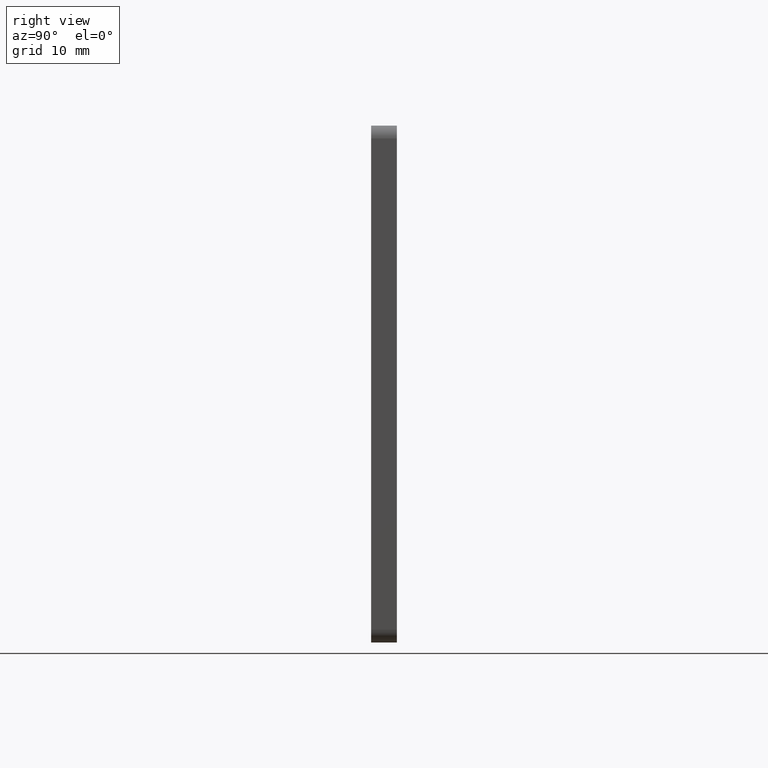
[diagram: clean part render]
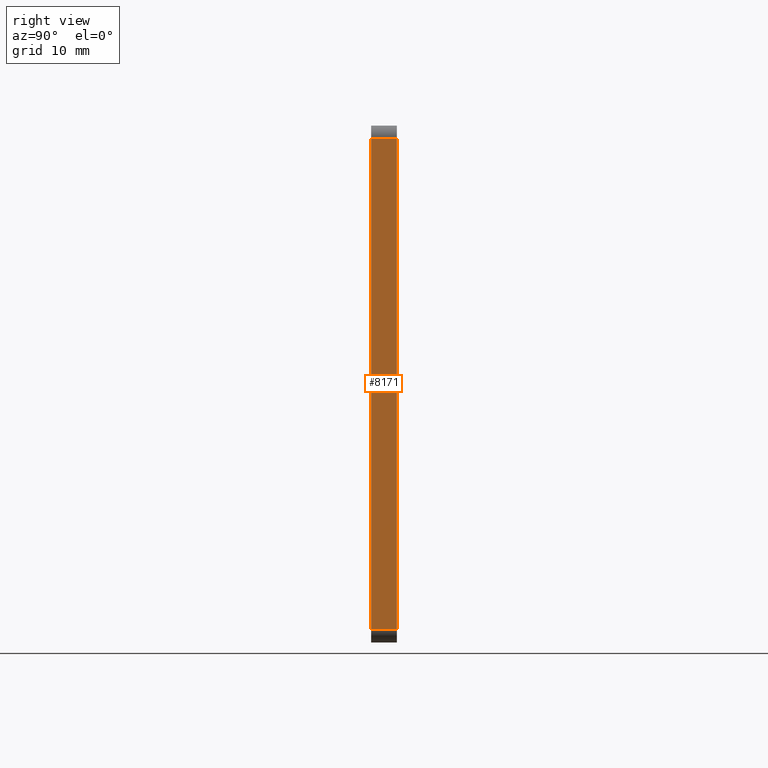
[diagram: same view with one face highlighted and labeled with its STEP entity id]
A machine part, right view. The second image highlights one B-rep face of the part: STEP entity #8171.
In plain terms, the highlighted planar face has unit normal (-1, 0, 0).
Its self-contained STEP definition (entity closure, byte-faithful):
#457 = AXIS2_PLACEMENT_3D ( 'NONE', #4328, #6522, #13346 ) ;
#544 = VERTEX_POINT ( 'NONE', #12971 ) ;
#766 = EDGE_CURVE ( 'NONE', #4066, #544, #12292, .T. ) ;
#1312 = VECTOR ( 'NONE', #3859, 1000.000000000000000 ) ;
#1356 = DIRECTION ( 'NONE',  ( -0.000000000000000000, 1.000000000000000000, -0.000000000000000000 ) ) ;
#1552 = EDGE_CURVE ( 'NONE', #10540, #11333, #3818, .T. ) ;
#2968 = VECTOR ( 'NONE', #9932, 1000.000000000000000 ) ;
#3818 = LINE ( 'NONE', #11770, #5943 ) ;
#3859 = DIRECTION ( 'NONE',  ( 0.000000000000000000, -1.000000000000000000, 0.000000000000000000 ) ) ;
#4066 = VERTEX_POINT ( 'NONE', #14499 ) ;
#4259 = EDGE_CURVE ( 'NONE', #4066, #10540, #13115, .T. ) ;
#4328 = CARTESIAN_POINT ( 'NONE',  ( 40.00000000000001421, 4.000000000000000000, -39.99999999999999289 ) ) ;
#4940 = VECTOR ( 'NONE', #1356, 1000.000000000000000 ) ;
#5346 = ORIENTED_EDGE ( 'NONE', *, *, #4259, .T. ) ;
#5450 = ORIENTED_EDGE ( 'NONE', *, *, #11816, .T. ) ;
#5756 = FACE_OUTER_BOUND ( 'NONE', #6326, .T. ) ;
#5943 = VECTOR ( 'NONE', #11872, 1000.000000000000000 ) ;
#6326 = EDGE_LOOP ( 'NONE', ( #8810, #5450, #14276, #5346 ) ) ;
#6522 = DIRECTION ( 'NONE',  ( -1.000000000000000000, 0.000000000000000000, 8.673617379884035472E-17 ) ) ;
#6534 = CARTESIAN_POINT ( 'NONE',  ( 40.00000000000002132, 0.000000000000000000, 38.00000000000000711 ) ) ;
#7257 = LINE ( 'NONE', #8136, #4940 ) ;
#8136 = CARTESIAN_POINT ( 'NONE',  ( 40.00000000000001421, 4.000000000000000000, -37.99999999999999289 ) ) ;
#8171 = ADVANCED_FACE ( 'NONE', ( #5756 ), #9972, .F. ) ;
#8810 = ORIENTED_EDGE ( 'NONE', *, *, #1552, .T. ) ;
#9884 = CARTESIAN_POINT ( 'NONE',  ( 40.00000000000001421, 4.000000000000000000, -39.99999999999999289 ) ) ;
#9932 = DIRECTION ( 'NONE',  ( -8.673617379884035472E-17, -0.000000000000000000, -1.000000000000000000 ) ) ;
#9972 = PLANE ( 'NONE',  #457 ) ;
#10540 = VERTEX_POINT ( 'NONE', #6534 ) ;
#10640 = CARTESIAN_POINT ( 'NONE',  ( 40.00000000000002132, 4.000000000000000000, 38.00000000000000711 ) ) ;
#11333 = VERTEX_POINT ( 'NONE', #14097 ) ;
#11770 = CARTESIAN_POINT ( 'NONE',  ( 40.00000000000001421, 0.000000000000000000, -39.99999999999999289 ) ) ;
#11816 = EDGE_CURVE ( 'NONE', #11333, #544, #7257, .T. ) ;
#11872 = DIRECTION ( 'NONE',  ( -8.673617379884035472E-17, -0.000000000000000000, -1.000000000000000000 ) ) ;
#12292 = LINE ( 'NONE', #9884, #2968 ) ;
#12971 = CARTESIAN_POINT ( 'NONE',  ( 40.00000000000001421, 4.000000000000000000, -37.99999999999999289 ) ) ;
#13115 = LINE ( 'NONE', #10640, #1312 ) ;
#13346 = DIRECTION ( 'NONE',  ( 8.673617379884035472E-17, 0.000000000000000000, 1.000000000000000000 ) ) ;
#14097 = CARTESIAN_POINT ( 'NONE',  ( 40.00000000000001421, 0.000000000000000000, -37.99999999999999289 ) ) ;
#14276 = ORIENTED_EDGE ( 'NONE', *, *, #766, .F. ) ;
#14499 = CARTESIAN_POINT ( 'NONE',  ( 40.00000000000002132, 4.000000000000000000, 38.00000000000000711 ) ) ;